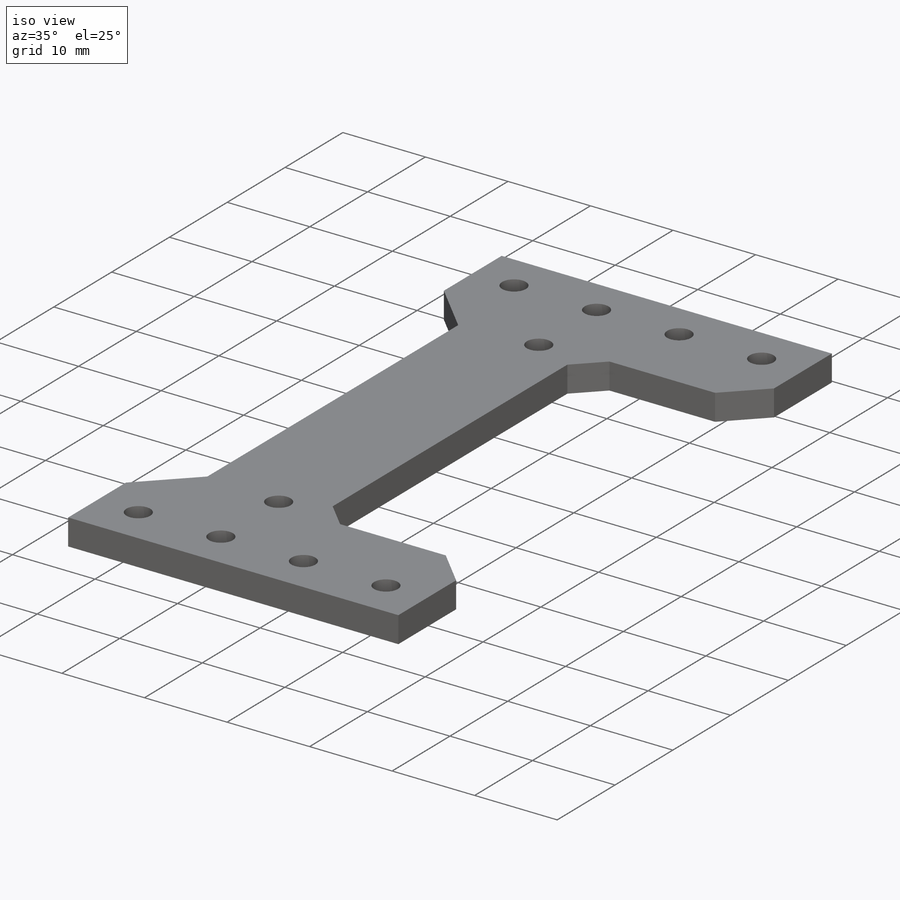
[diagram: iso view]
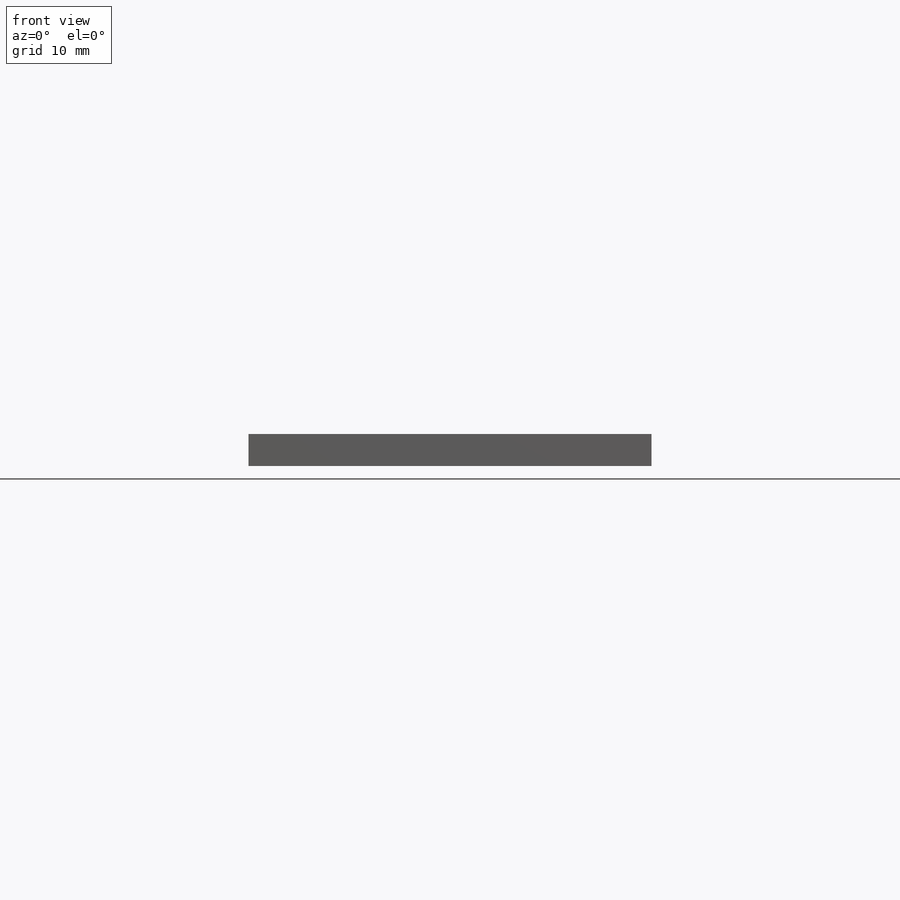
[diagram: front view]
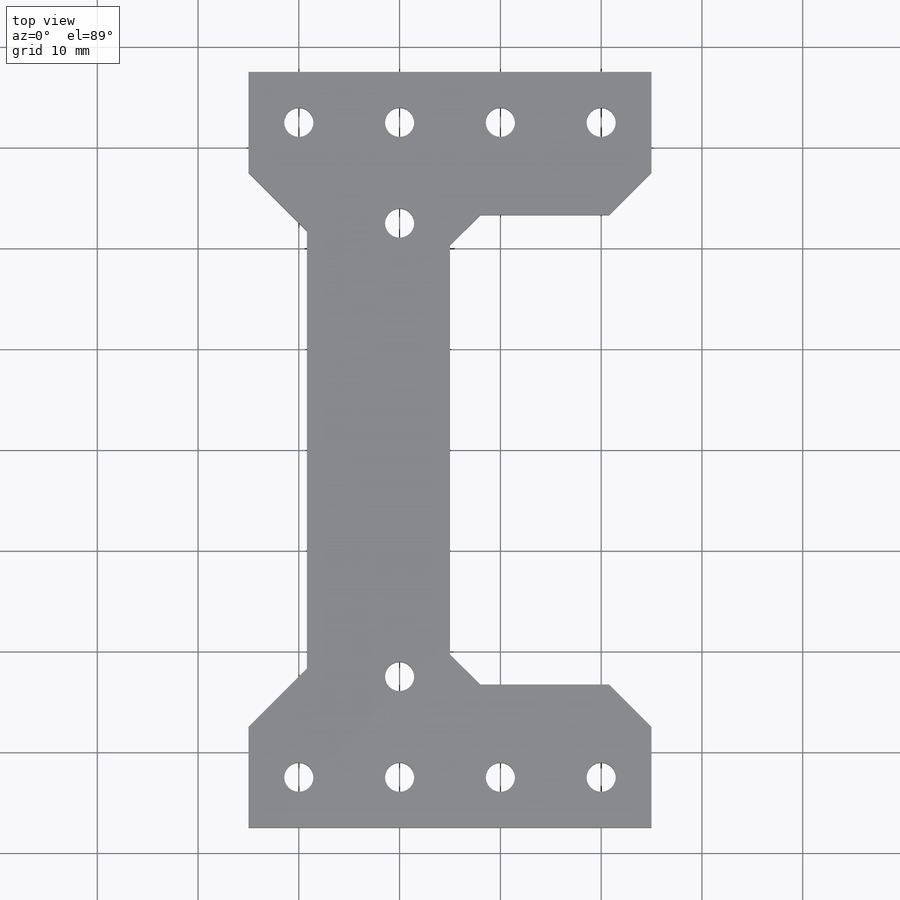
[diagram: top view]
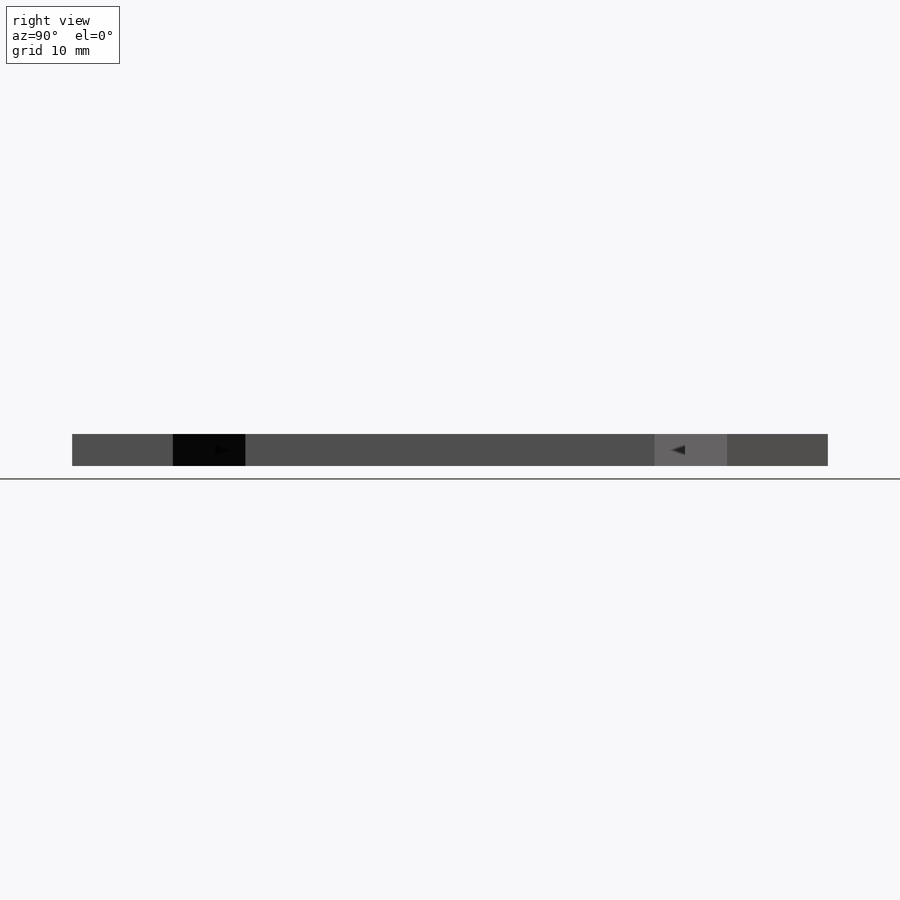
[diagram: right view]
SOLIDWORKS PART (.sldprt)
format: sldprt  version: not decoded by parser v0  size: 537,600 bytes
history: native  units: mm
features: sketch x3, extrude x2, chamfer x2, material x1, mirror x1, cut_extrude x1 (+16 scaffold rows collapsed)
feature tree (26):
  scaffold x16  (default folders/planes/origin — collapsed)
  material  "Material <not specified>"
  sketch  "Sketch1"  dims[c1.D4=2.9mm c1.D1=37.5mm c1.D2=10.0mm c1.D3=14.2mm c1.D5=5.0mm c1.D6=5.0mm c1.D7=5.0mm c2.D5=20.0mm c2.D8=10.0mm c2.D9=5.0mm c2.D10=5.0mm c2.D6=10.0mm c2.D11=32.5mm c2.D12=~11.256507mm c3.D12=45.0deg c3.D13=14.2mm c3.D14=10.0mm]
  extrude  "Boss-Extrude1"  Depth=3.175mm
  mirror  "Mirror1"
  chamfer  "Chamfer1"  Distance=4.2mm Angle=45deg
  chamfer  "Chamfer2"  Distance=3mm Angle=45deg
  sketch  "Sketch2"  dims[D1=5.0mm]
  cut_extrude  "Cut-Extrude1"  [1 undecoded]
  sketch  "Sketch3"
  extrude  "Boss-Extrude2"  [1 undecoded]
decode coverage: 5 of 9 modeling features carry decoded parameters
note: ~ marks probable driven/reference dimensions
note: 2 parameter values undecoded
note: suppression state not decoded; provenance and decode notes live in map.json
